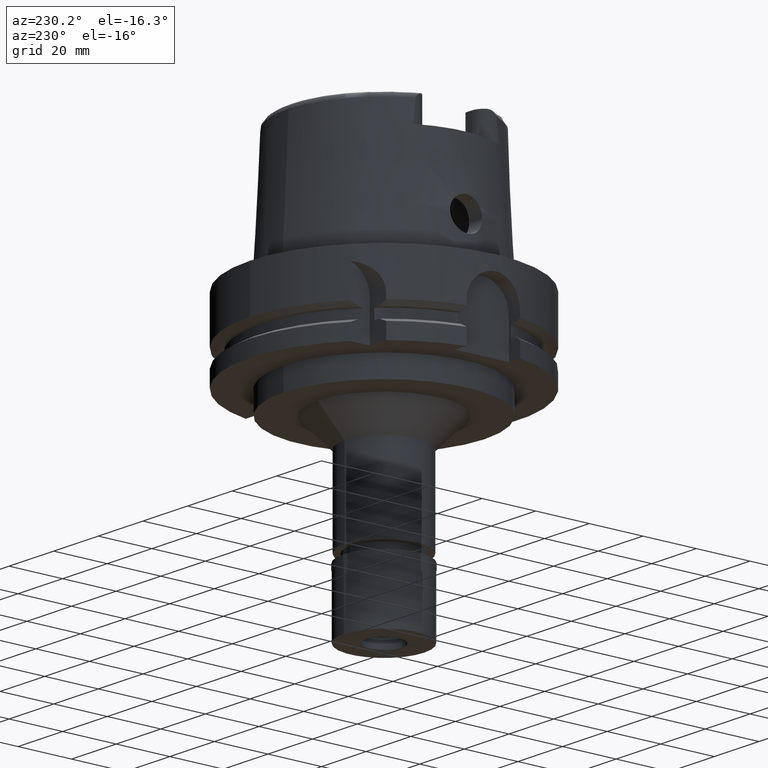
[diagram: clean part render]
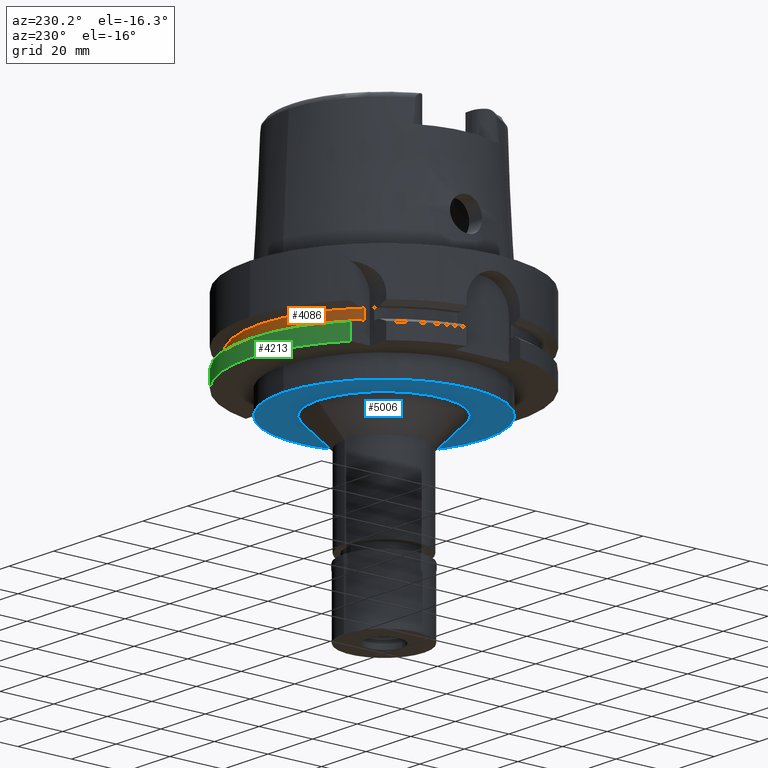
[diagram: same view with three faces highlighted in distinct colors, each labeled with its STEP entity id]
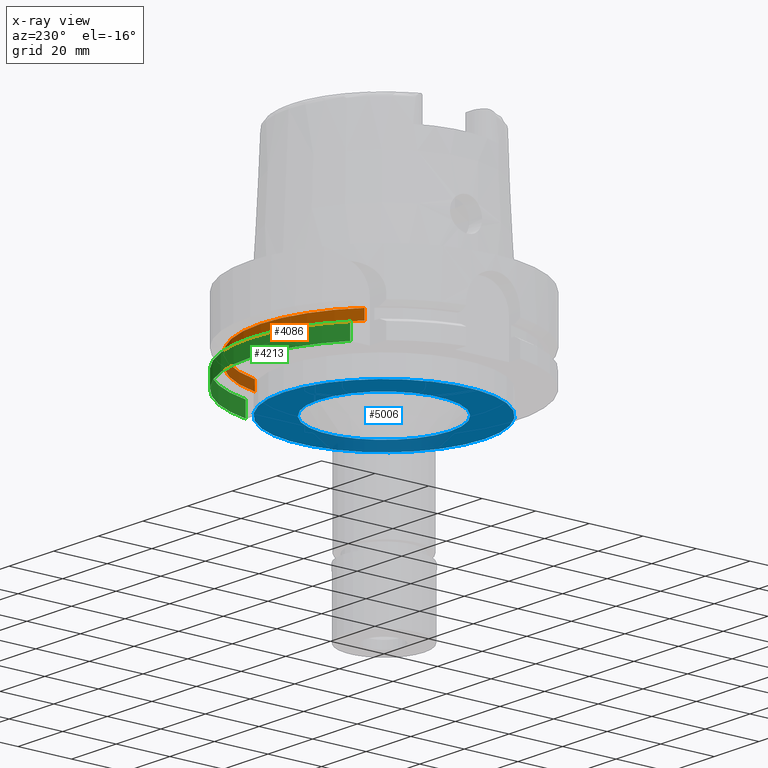
[diagram: x-ray of the same camera — body ghosted, the three highlighted faces saturated]
A machine part, auxiliary view with three faces highlighted in distinct colors.
The next image is the same camera in x-ray (body ghosted, the three faces saturated) — at least one of them is partly hidden behind the body in this view.
Their STEP definitions:

[orange] entity #4086 — the highlighted cylindrical surface (partial cylindrical patch) has radius 46 mm, axis along (0, 0, 1).
#100 = DIRECTION ( 'NONE',  ( 0.0000000000000000000, 0.0000000000000000000, 1.000000000000000000 ) ) ;
#118 = CARTESIAN_POINT ( 'NONE',  ( -31.50000000000000000, 33.52238058372000040, -21.87500000000000000 ) ) ;
#144 = EDGE_CURVE ( 'NONE', #3193, #2181, #1014, .T. ) ;
#151 = VECTOR ( 'NONE', #3016, 1000.000000000000000 ) ;
#334 = ORIENTED_EDGE ( 'NONE', *, *, #144, .F. ) ;
#508 = DIRECTION ( 'NONE',  ( 0.0000000000000000000, 0.0000000000000000000, -1.000000000000000000 ) ) ;
#532 = CARTESIAN_POINT ( 'NONE',  ( 0.0000000000000000000, 0.0000000000000000000, -21.87500000000000000 ) ) ;
#890 = DIRECTION ( 'NONE',  ( 0.0000000000000000000, 1.000000000000000000, 0.0000000000000000000 ) ) ;
#1014 = LINE ( 'NONE', #2384, #1604 ) ;
#1241 = AXIS2_PLACEMENT_3D ( 'NONE', #4786, #3814, #1701 ) ;
#1309 = VERTEX_POINT ( 'NONE', #118 ) ;
#1418 = CIRCLE ( 'NONE', #4571, 46.00000000000000000 ) ;
#1604 = VECTOR ( 'NONE', #5362, 1000.000000000000000 ) ;
#1701 = DIRECTION ( 'NONE',  ( 0.0000000000000000000, 1.000000000000000000, 0.0000000000000000000 ) ) ;
#2052 = CIRCLE ( 'NONE', #4582, 46.00000000000000000 ) ;
#2110 = CARTESIAN_POINT ( 'NONE',  ( -31.50000000000000000, 33.52238058372000040, -18.12500000000000000 ) ) ;
#2181 = VERTEX_POINT ( 'NONE', #3235 ) ;
#2308 = ORIENTED_EDGE ( 'NONE', *, *, #2948, .T. ) ;
#2384 = CARTESIAN_POINT ( 'NONE',  ( 44.66542286825000474, 11.00000000000000000, -21.87500000000000000 ) ) ;
#2572 = EDGE_CURVE ( 'NONE', #3193, #1309, #1418, .T. ) ;
#2687 = CARTESIAN_POINT ( 'NONE',  ( 0.0000000000000000000, 0.0000000000000000000, -18.12500000000000000 ) ) ;
#2948 = EDGE_CURVE ( 'NONE', #4315, #2181, #2052, .T. ) ;
#3016 = DIRECTION ( 'NONE',  ( 0.0000000000000000000, 0.0000000000000000000, -1.000000000000000000 ) ) ;
#3193 = VERTEX_POINT ( 'NONE', #4496 ) ;
#3235 = CARTESIAN_POINT ( 'NONE',  ( 44.66542286825000474, 11.00000000000000000, -18.12500000000000000 ) ) ;
#3382 = EDGE_CURVE ( 'NONE', #4315, #1309, #4325, .T. ) ;
#3552 = CARTESIAN_POINT ( 'NONE',  ( -31.50000000000000000, 33.52238058372000040, -18.12500000000000000 ) ) ;
#3566 = ORIENTED_EDGE ( 'NONE', *, *, #2572, .T. ) ;
#3814 = DIRECTION ( 'NONE',  ( 0.0000000000000000000, 0.0000000000000000000, 1.000000000000000000 ) ) ;
#4086 = ADVANCED_FACE ( 'NONE', ( #5090 ), #5147, .T. ) ;
#4295 = ORIENTED_EDGE ( 'NONE', *, *, #3382, .F. ) ;
#4315 = VERTEX_POINT ( 'NONE', #3552 ) ;
#4325 = LINE ( 'NONE', #2110, #151 ) ;
#4496 = CARTESIAN_POINT ( 'NONE',  ( 44.66542286825000474, 11.00000000000000000, -21.87500000000000000 ) ) ;
#4571 = AXIS2_PLACEMENT_3D ( 'NONE', #532, #100, #5217 ) ;
#4582 = AXIS2_PLACEMENT_3D ( 'NONE', #2687, #508, #890 ) ;
#4786 = CARTESIAN_POINT ( 'NONE',  ( 0.0000000000000000000, 0.0000000000000000000, -102.2500000000000000 ) ) ;
#4858 = EDGE_LOOP ( 'NONE', ( #4295, #2308, #334, #3566 ) ) ;
#5090 = FACE_OUTER_BOUND ( 'NONE', #4858, .T. ) ;
#5147 = CYLINDRICAL_SURFACE ( 'NONE', #1241, 46.00000000000000000 ) ;
#5217 = DIRECTION ( 'NONE',  ( 0.9709874536577099979, 0.2391304347826024856, 0.0000000000000000000 ) ) ;
#5362 = DIRECTION ( 'NONE',  ( 0.0000000000000000000, 0.0000000000000000000, 1.000000000000000000 ) ) ;

[blue] entity #5006 — the highlighted planar face has unit normal (0, 0, 1).
#50 = CIRCLE ( 'NONE', #1137, 24.75000000000000000 ) ;
#156 = DIRECTION ( 'NONE',  ( 0.0000000000000000000, 0.0000000000000000000, -1.000000000000000000 ) ) ;
#245 = PLANE ( 'NONE',  #1512 ) ;
#319 = EDGE_CURVE ( 'NONE', #4550, #1283, #3141, .T. ) ;
#703 = ORIENTED_EDGE ( 'NONE', *, *, #2557, .F. ) ;
#831 = CARTESIAN_POINT ( 'NONE',  ( 0.0000000000000000000, -24.75000000000000000, -37.00000000000000000 ) ) ;
#866 = EDGE_LOOP ( 'NONE', ( #2548, #4605 ) ) ;
#1099 = DIRECTION ( 'NONE',  ( 0.0000000000000000000, 0.0000000000000000000, 1.000000000000000000 ) ) ;
#1137 = AXIS2_PLACEMENT_3D ( 'NONE', #1801, #3527, #5341 ) ;
#1219 = DIRECTION ( 'NONE',  ( 0.0000000000000000000, 1.000000000000000000, 0.0000000000000000000 ) ) ;
#1283 = VERTEX_POINT ( 'NONE', #4403 ) ;
#1452 = VERTEX_POINT ( 'NONE', #2358 ) ;
#1512 = AXIS2_PLACEMENT_3D ( 'NONE', #3714, #1099, #1973 ) ;
#1513 = CARTESIAN_POINT ( 'NONE',  ( 0.0000000000000000000, 0.0000000000000000000, -37.00000000000000000 ) ) ;
#1561 = DIRECTION ( 'NONE',  ( 0.0000000000000000000, -1.000000000000000000, 0.0000000000000000000 ) ) ;
#1801 = CARTESIAN_POINT ( 'NONE',  ( 0.0000000000000000000, 0.0000000000000000000, -37.00000000000000000 ) ) ;
#1973 = DIRECTION ( 'NONE',  ( 1.000000000000000000, 0.0000000000000000000, 0.0000000000000000000 ) ) ;
#1995 = FACE_OUTER_BOUND ( 'NONE', #2811, .T. ) ;
#2039 = AXIS2_PLACEMENT_3D ( 'NONE', #1513, #5358, #1561 ) ;
#2090 = EDGE_CURVE ( 'NONE', #1452, #4732, #50, .T. ) ;
#2130 = CIRCLE ( 'NONE', #2039, 37.50000000000000000 ) ;
#2358 = CARTESIAN_POINT ( 'NONE',  ( 0.0000000000000000000, 24.75000000000000000, -37.00000000000000000 ) ) ;
#2396 = EDGE_CURVE ( 'NONE', #4732, #1452, #5292, .T. ) ;
#2548 = ORIENTED_EDGE ( 'NONE', *, *, #2090, .F. ) ;
#2557 = EDGE_CURVE ( 'NONE', #1283, #4550, #2130, .T. ) ;
#2614 = ORIENTED_EDGE ( 'NONE', *, *, #319, .F. ) ;
#2670 = CARTESIAN_POINT ( 'NONE',  ( 0.0000000000000000000, 0.0000000000000000000, -37.00000000000000000 ) ) ;
#2778 = CARTESIAN_POINT ( 'NONE',  ( 0.0000000000000000000, 37.50000000000000000, -37.00000000000000000 ) ) ;
#2811 = EDGE_LOOP ( 'NONE', ( #2614, #703 ) ) ;
#3141 = CIRCLE ( 'NONE', #3597, 37.50000000000000000 ) ;
#3527 = DIRECTION ( 'NONE',  ( 0.0000000000000000000, 0.0000000000000000000, -1.000000000000000000 ) ) ;
#3597 = AXIS2_PLACEMENT_3D ( 'NONE', #5084, #4751, #1219 ) ;
#3714 = CARTESIAN_POINT ( 'NONE',  ( 0.0000000000000000000, 0.0000000000000000000, -37.00000000000000000 ) ) ;
#3842 = AXIS2_PLACEMENT_3D ( 'NONE', #2670, #156, #4404 ) ;
#4403 = CARTESIAN_POINT ( 'NONE',  ( 0.0000000000000000000, -37.50000000000000000, -37.00000000000000000 ) ) ;
#4404 = DIRECTION ( 'NONE',  ( 0.0000000000000000000, -1.000000000000000000, 0.0000000000000000000 ) ) ;
#4550 = VERTEX_POINT ( 'NONE', #2778 ) ;
#4605 = ORIENTED_EDGE ( 'NONE', *, *, #2396, .F. ) ;
#4732 = VERTEX_POINT ( 'NONE', #831 ) ;
#4751 = DIRECTION ( 'NONE',  ( 0.0000000000000000000, 0.0000000000000000000, 1.000000000000000000 ) ) ;
#4961 = FACE_BOUND ( 'NONE', #866, .T. ) ;
#5006 = ADVANCED_FACE ( 'NONE', ( #1995, #4961 ), #245, .F. ) ;
#5084 = CARTESIAN_POINT ( 'NONE',  ( 0.0000000000000000000, 0.0000000000000000000, -37.00000000000000000 ) ) ;
#5292 = CIRCLE ( 'NONE', #3842, 24.75000000000000000 ) ;
#5341 = DIRECTION ( 'NONE',  ( 0.0000000000000000000, 1.000000000000000000, 0.0000000000000000000 ) ) ;
#5358 = DIRECTION ( 'NONE',  ( 0.0000000000000000000, 0.0000000000000000000, 1.000000000000000000 ) ) ;

[green] entity #4213 — the highlighted cylindrical surface (partial cylindrical patch) has radius 50 mm, axis along (0, 0, 1).
#609 = CIRCLE ( 'NONE', #4126, 50.00000000000000000 ) ;
#641 = EDGE_CURVE ( 'NONE', #1994, #2580, #5425, .T. ) ;
#807 = ORIENTED_EDGE ( 'NONE', *, *, #641, .F. ) ;
#929 = EDGE_LOOP ( 'NONE', ( #1888, #807, #3313, #5545 ) ) ;
#1144 = CIRCLE ( 'NONE', #5569, 50.00000000000000711 ) ;
#1391 = CARTESIAN_POINT ( 'NONE',  ( 0.0000000000000000000, 0.0000000000000000000, -102.2500000000000000 ) ) ;
#1434 = EDGE_CURVE ( 'NONE', #3789, #4443, #3171, .T. ) ;
#1588 = CARTESIAN_POINT ( 'NONE',  ( 0.0000000000000000000, 0.0000000000000000000, -23.24759526419000011 ) ) ;
#1739 = CARTESIAN_POINT ( 'NONE',  ( -31.50000000000000000, 38.82975663071000128, -29.00000000000000000 ) ) ;
#1847 = CARTESIAN_POINT ( 'NONE',  ( 48.77499359303000404, 11.00000000000000000, -23.24759526419000011 ) ) ;
#1888 = ORIENTED_EDGE ( 'NONE', *, *, #2531, .T. ) ;
#1894 = FACE_OUTER_BOUND ( 'NONE', #929, .T. ) ;
#1930 = CARTESIAN_POINT ( 'NONE',  ( 48.77499359303000404, 11.00000000000000000, -29.00000000000000000 ) ) ;
#1994 = VERTEX_POINT ( 'NONE', #4436 ) ;
#2217 = VECTOR ( 'NONE', #4977, 1000.000000000000000 ) ;
#2531 = EDGE_CURVE ( 'NONE', #3789, #2580, #1144, .T. ) ;
#2580 = VERTEX_POINT ( 'NONE', #1847 ) ;
#2721 = DIRECTION ( 'NONE',  ( 0.0000000000000000000, 1.000000000000000000, 0.0000000000000000000 ) ) ;
#2835 = DIRECTION ( 'NONE',  ( 0.0000000000000000000, 0.0000000000000000000, -1.000000000000000000 ) ) ;
#2957 = CARTESIAN_POINT ( 'NONE',  ( -31.50000355985999789, 38.82975374283000036, -23.24760820811999906 ) ) ;
#3142 = DIRECTION ( 'NONE',  ( 0.0000000000000000000, 0.0000000000000000000, 1.000000000000000000 ) ) ;
#3171 = LINE ( 'NONE', #3227, #2217 ) ;
#3227 = CARTESIAN_POINT ( 'NONE',  ( -31.50000355985999789, 38.82975374283000036, -23.24760820811999906 ) ) ;
#3256 = DIRECTION ( 'NONE',  ( -8.399427413532000465E-14, -2.068976605539000027E-14, 1.000000000000000000 ) ) ;
#3313 = ORIENTED_EDGE ( 'NONE', *, *, #4738, .T. ) ;
#3384 = DIRECTION ( 'NONE',  ( 0.0000000000000000000, 0.0000000000000000000, 1.000000000000000000 ) ) ;
#3789 = VERTEX_POINT ( 'NONE', #2957 ) ;
#3841 = AXIS2_PLACEMENT_3D ( 'NONE', #1391, #3142, #2721 ) ;
#4126 = AXIS2_PLACEMENT_3D ( 'NONE', #4720, #3384, #5544 ) ;
#4213 = ADVANCED_FACE ( 'NONE', ( #1894 ), #5258, .T. ) ;
#4436 = CARTESIAN_POINT ( 'NONE',  ( 48.77499359303000404, 11.00000000000000000, -29.00000000000000000 ) ) ;
#4443 = VERTEX_POINT ( 'NONE', #1739 ) ;
#4720 = CARTESIAN_POINT ( 'NONE',  ( 0.0000000000000000000, 0.0000000000000000000, -29.00000000000000000 ) ) ;
#4738 = EDGE_CURVE ( 'NONE', #1994, #4443, #609, .T. ) ;
#4977 = DIRECTION ( 'NONE',  ( 6.188494047474892859E-07, 5.020316378013912240E-07, -0.9999999999996824762 ) ) ;
#5004 = DIRECTION ( 'NONE',  ( -0.6299999999999789102, 0.7765951326141738997, 0.0000000000000000000 ) ) ;
#5258 = CYLINDRICAL_SURFACE ( 'NONE', #3841, 50.00000000000000000 ) ;
#5374 = VECTOR ( 'NONE', #3256, 1000.000000000000000 ) ;
#5425 = LINE ( 'NONE', #1930, #5374 ) ;
#5544 = DIRECTION ( 'NONE',  ( 0.0000000000000000000, 1.000000000000000000, 0.0000000000000000000 ) ) ;
#5545 = ORIENTED_EDGE ( 'NONE', *, *, #1434, .F. ) ;
#5569 = AXIS2_PLACEMENT_3D ( 'NONE', #1588, #2835, #5004 ) ;